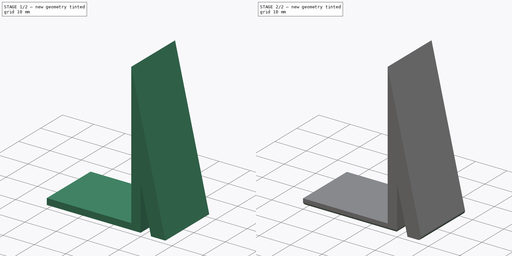
[diagram: build sequence overview — one tinted view per stage of 2, left to right]
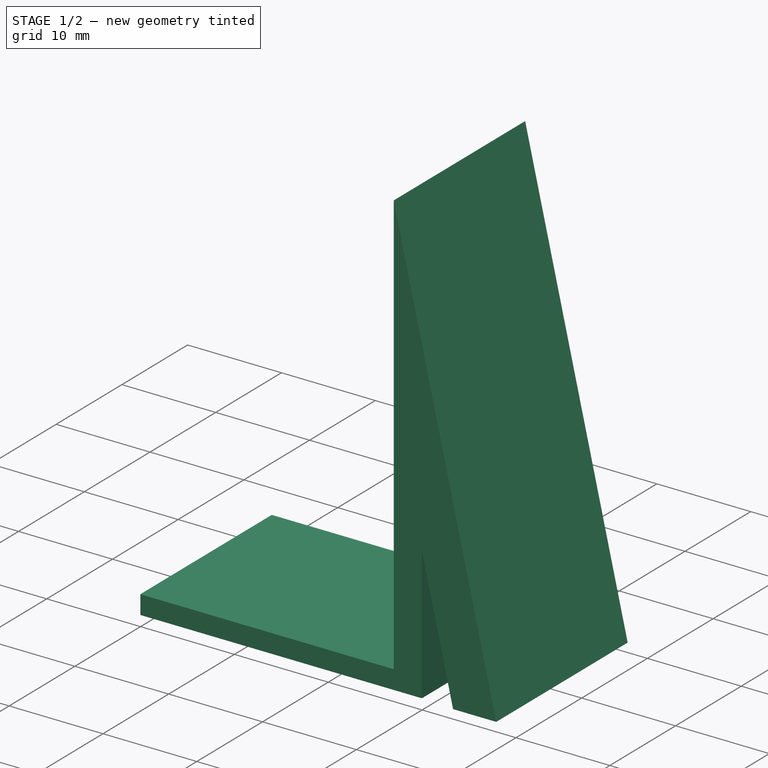
[diagram: stage 1 of 2 — iso view after this stage's code; geometry added in this stage tinted green]
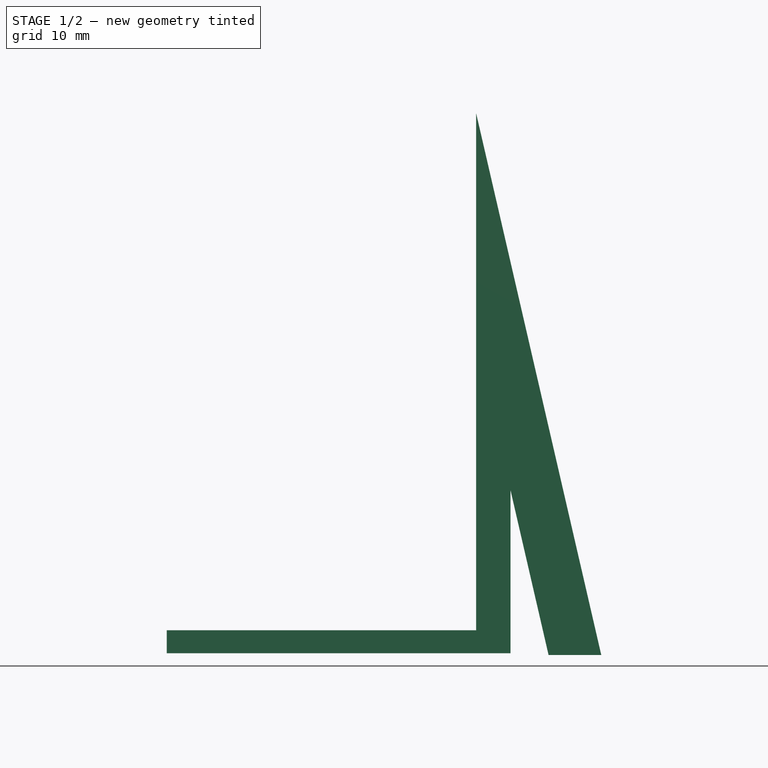
[diagram: stage 1 of 2 — front view after this stage's code; geometry added in this stage tinted green]
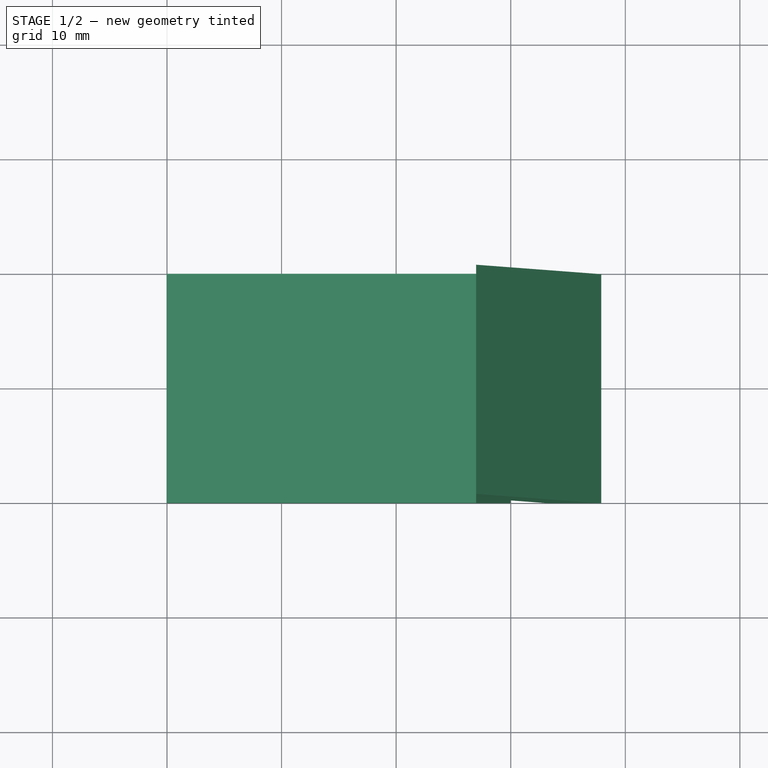
[diagram: stage 1 of 2 — top view after this stage's code; geometry added in this stage tinted green]
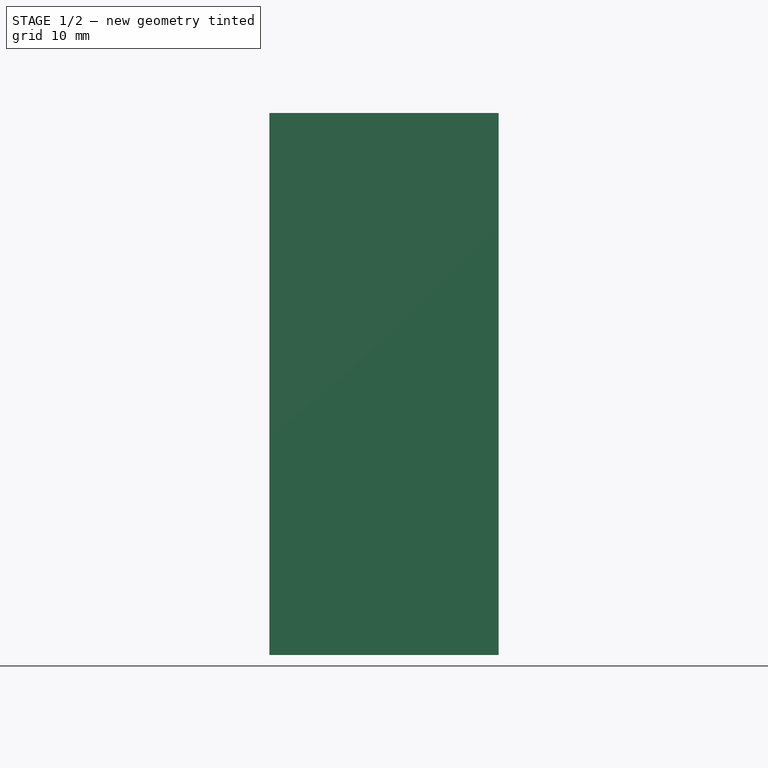
[diagram: stage 1 of 2 — right view after this stage's code; geometry added in this stage tinted green]
FCSTD DOCUMENT  (FreeCAD 2024.409R38991 (Git))
Label: TerraceFloorPegs
License: All rights reserved
LicenseURL: https://en.wikipedia.org/wiki/All_rights_reserved
objects: Sketcher::SketchObject×2, PartDesign::Pad×1, PartDesign::Fillet×1, PartDesign::Body×1
note: 11 computed .brp shape members not serialized (recipe doc carries the construction recipe); baked Part::Feature solids carry a one-line shape summary decoded from their .brp

FEATURE [Sketcher::SketchObject] Sketch
  ArcFitTolerance = 1e-06
  AttachmentSupport = -> [XZ_Plane]
  ExternalBSplineMaxDegree = 5
  ExternalBSplineTolerance = 0.0001
  FullyConstrained = false
  InternalTolerance = 1e-06
  InvalidShape = false
  MakeInternals = false
  MapMode = 5
  Placement = pos=(0,0,0) rot=(1,0,0;1.5708rad)
  Support = -> [XZ_Plane]
  TreeRank = 11
  ValidateShape = false
  sketch-geometry (9):
    g0: LineSegment StartX=-0.023238 StartY=0 StartZ=0 EndX=-30.0232 EndY=0 EndZ=0
    g1: LineSegment StartX=-30.0232 StartY=0 StartZ=0 EndX=-30.0232 EndY=2 EndZ=0
    g2: LineSegment StartX=-30.0232 StartY=2 StartZ=0 EndX=-3.02324 EndY=2 EndZ=0
    g3: LineSegment StartX=-3.02324 StartY=2 StartZ=0 EndX=-3.02324 EndY=47.1446 EndZ=0
    g4: LineSegment StartX=-3.02324 StartY=47.1446 StartZ=0 EndX=7.90182 EndY=-0.154383 EndZ=0
    g5: LineSegment StartX=3.30216 StartY=-0.154383 StartZ=0 EndX=-0.023238 EndY=14.2426 EndZ=0
    g6: LineSegment StartX=-0.023238 StartY=14.2426 StartZ=0 EndX=-0.023238 EndY=0 EndZ=0
    g7: LineSegment [constr] StartX=-3.02324 StartY=2 StartZ=0 EndX=-0.023238 EndY=2 EndZ=0
    g8: LineSegment StartX=7.90182 StartY=-0.154383 StartZ=0 EndX=3.30216 EndY=-0.154383 EndZ=0
  constraints (22):
    c: PointOnObject(g0,g-1)
    c: Horizontal(g0)
    c: Coincident(g0,g1)
    c: Coincident(g1,g2)
    c: Horizontal(g2)
    c: Coincident(g2,g3)
    c: Vertical(g3)
    c: Coincident(g3,g4)
    c: Coincident(g5,g6)
    c: Coincident(g6,g0)
    c: DistanceX(g0,g0) = 30
    c: Parallel(g6,g3)
    c: DistanceY(g1,g1) = 2
    c: Parallel(g5,g4)
    c: Coincident(g7,g2)
    c: PointOnObject(g7,g6)
    c: Horizontal(g7)
    c: DistanceX(g7,g7) = 3
    c: Angle(g0,g1) = 1.5708
    c: Coincident(g8,g4)
    c: Horizontal(g8)
    c: Coincident(g5,g8)
FEATURE [PartDesign::Pad] Pad
  AddSubType = 0
  AlongSketchNormal = false
  AutoTaperInnerAngle = true
  CheckUpToFaceLimits = true
  ClaimChildren = false
  Direction = (0,-1,-2e-16)
  Fit = 0
  FitJoin = 0
  InnerFit = 0
  InnerFitJoin = 0
  InvalidShape = false
  Length = 20
  Length2 = 10
  Linearize = true
  NewSolid = false
  Profile = -> Sketch
  ReferenceAxis = -> Sketch [N_Axis]
  Suppress = false
  TaperInnerAngle = 0
  TaperInnerAngleRev = 0
  TreeRank = 12
  Type = 0
  ValidateShape = true
  _ProfileBasedVersion = 1
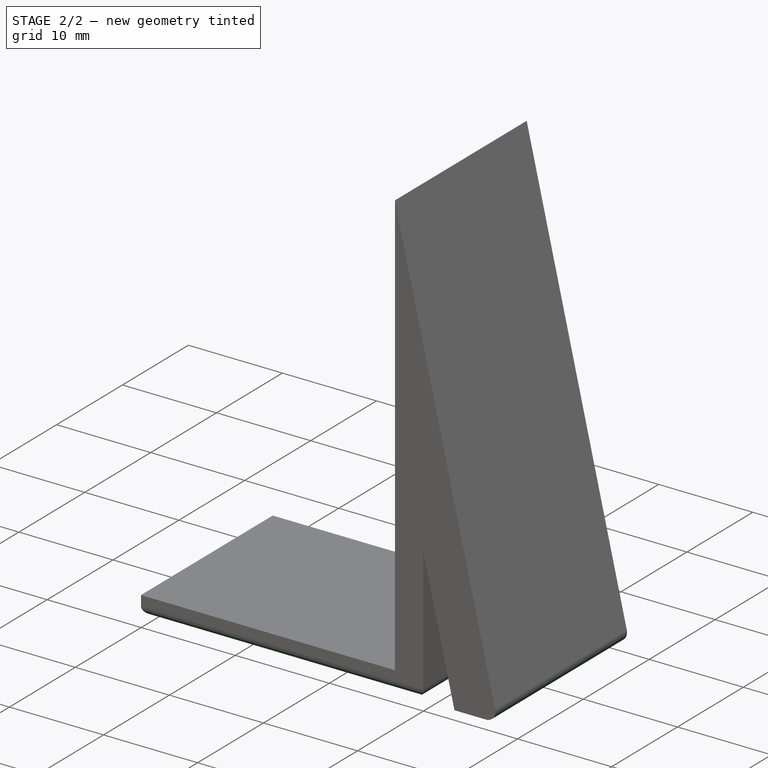
[diagram: stage 2 of 2 — iso view after this stage's code; geometry added in this stage tinted green]
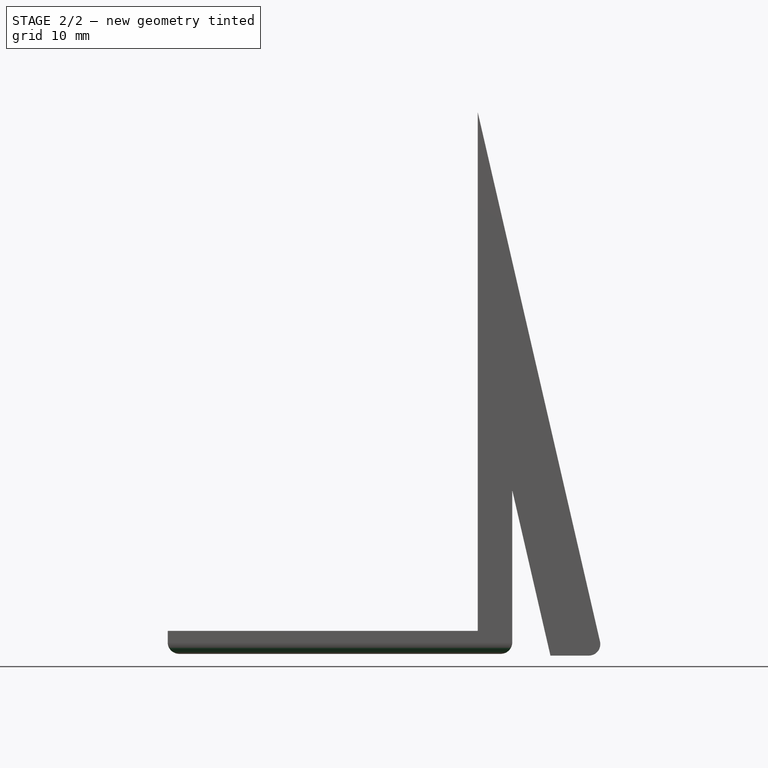
[diagram: stage 2 of 2 — front view after this stage's code; geometry added in this stage tinted green]
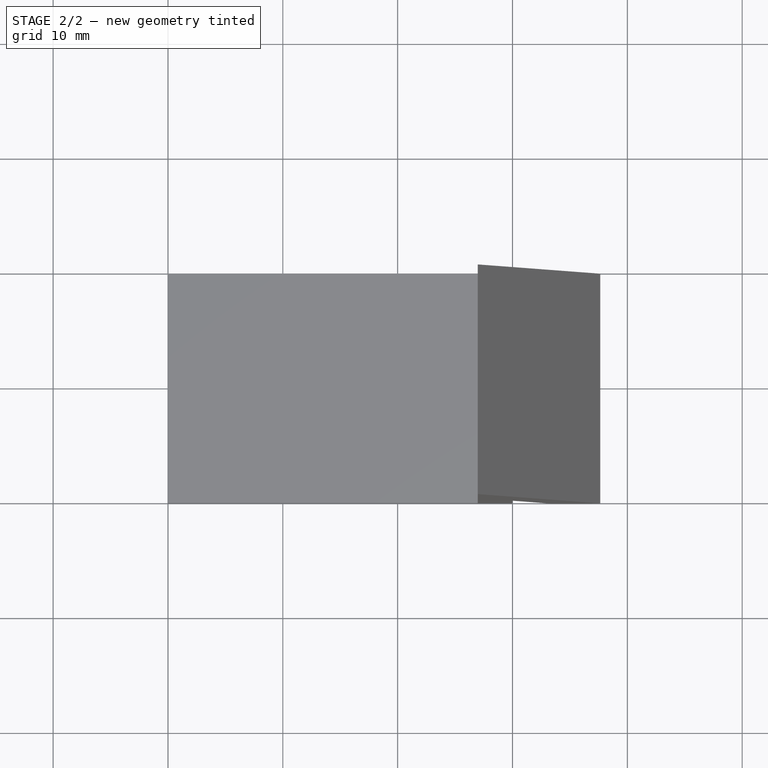
[diagram: stage 2 of 2 — top view after this stage's code; geometry added in this stage tinted green]
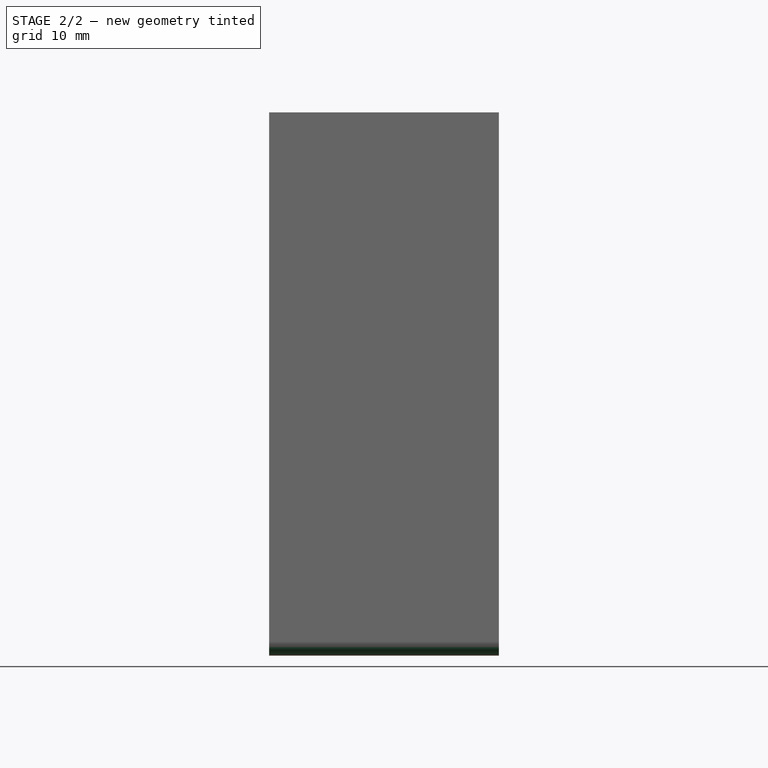
[diagram: stage 2 of 2 — right view after this stage's code; geometry added in this stage tinted green]
FEATURE [PartDesign::Fillet] Fillet
  AddSubType = 0
  Base = -> Pad [Edge2,Edge4,Edge3,Edge1,?Edge19,?Edge17,Edge14,?Edge18]
  BaseFeature = -> Pad
  InvalidShape = false
  NewSolid = false
  Radius = 1
  SupportTransform = false
  Suppress = false
  TreeRank = 13
  UseAllEdges = false
  ValidateShape = true
FEATURE [Sketcher::SketchObject] Sketch001
  ArcFitTolerance = 1e-06
  AttachmentSupport = -> [Fillet]
  ExternalBSplineMaxDegree = 5
  ExternalBSplineTolerance = 0.0001
  FullyConstrained = true
  InternalTolerance = 1e-06
  InvalidShape = false
  MakeInternals = false
  MapMode = 5
  Support = -> [Fillet]
  TreeRank = 14
  ValidateShape = false
FEATURE [PartDesign::Body] Body
  AutoGroupSolids = false
  ClaimAllChildren = false
  ExportMode = 0
  Group = -> [Sketch,Pad,Fillet,Sketch001]
  InvalidShape = false
  Origin = -> Origin
  Tip = -> Fillet
  TreeRank = 10
  ValidateShape = false
  _ExportChildren = -> [Pad,Fillet,Sketch001]
  _GroupVersion = 1
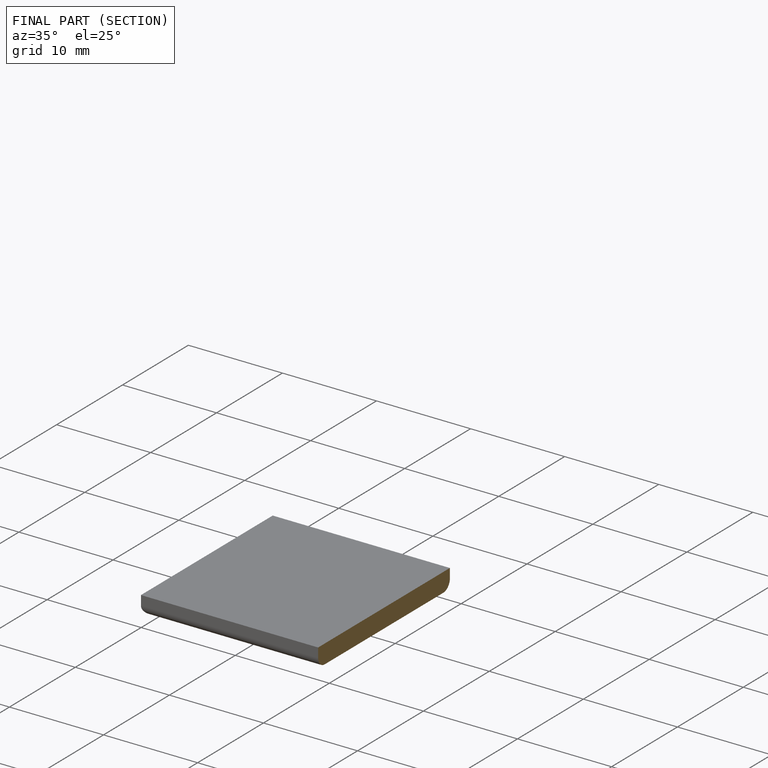
[diagram: finished part — half-section view (interior)]
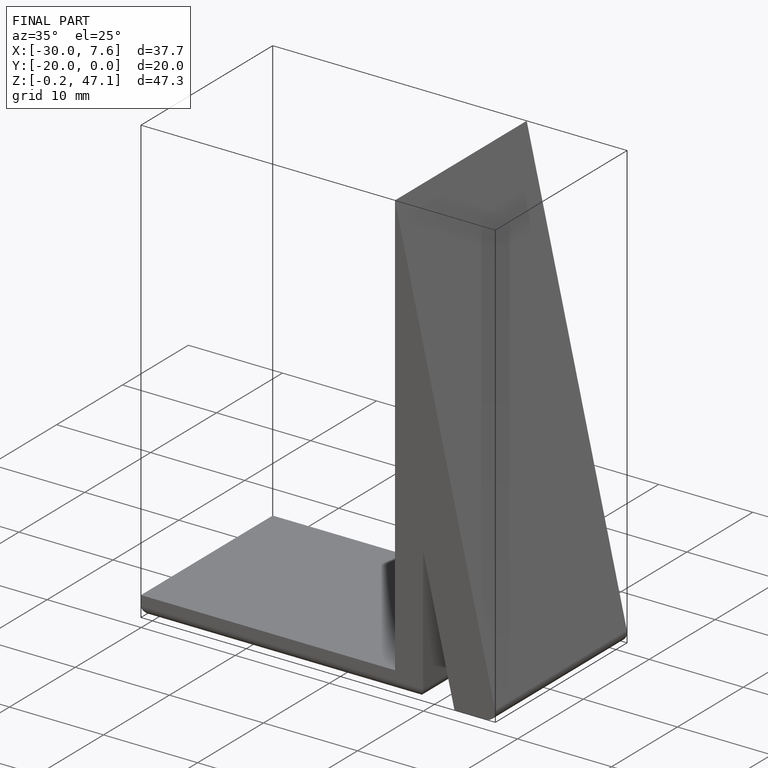
[diagram: finished part — iso view with bounding-box wireframe]
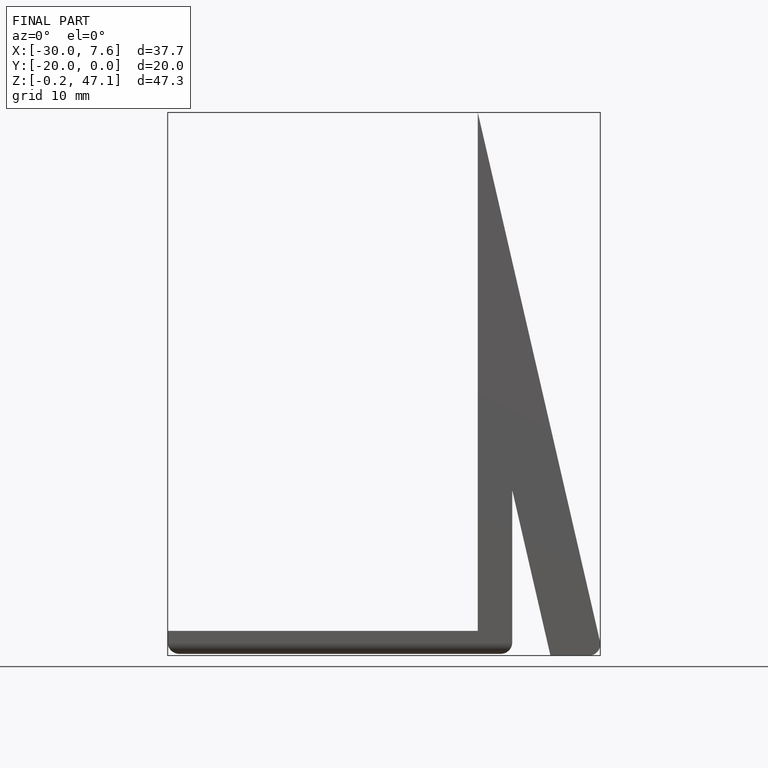
[diagram: finished part — front view with bounding-box wireframe]
